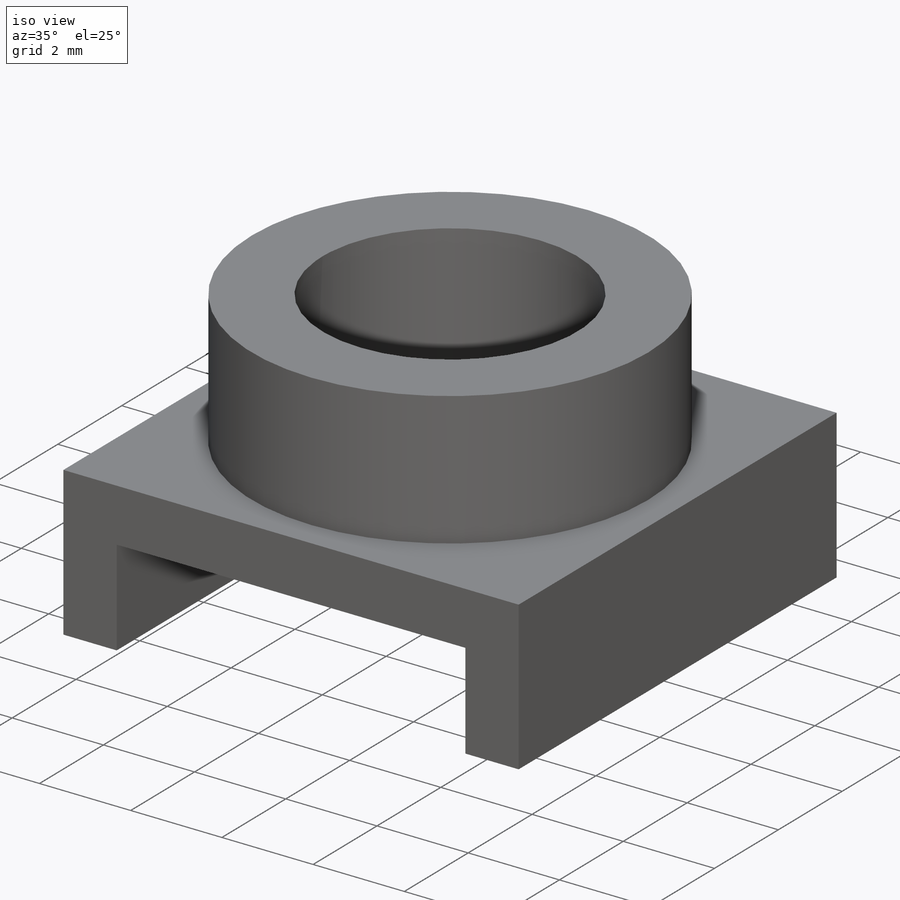
[diagram: iso view]
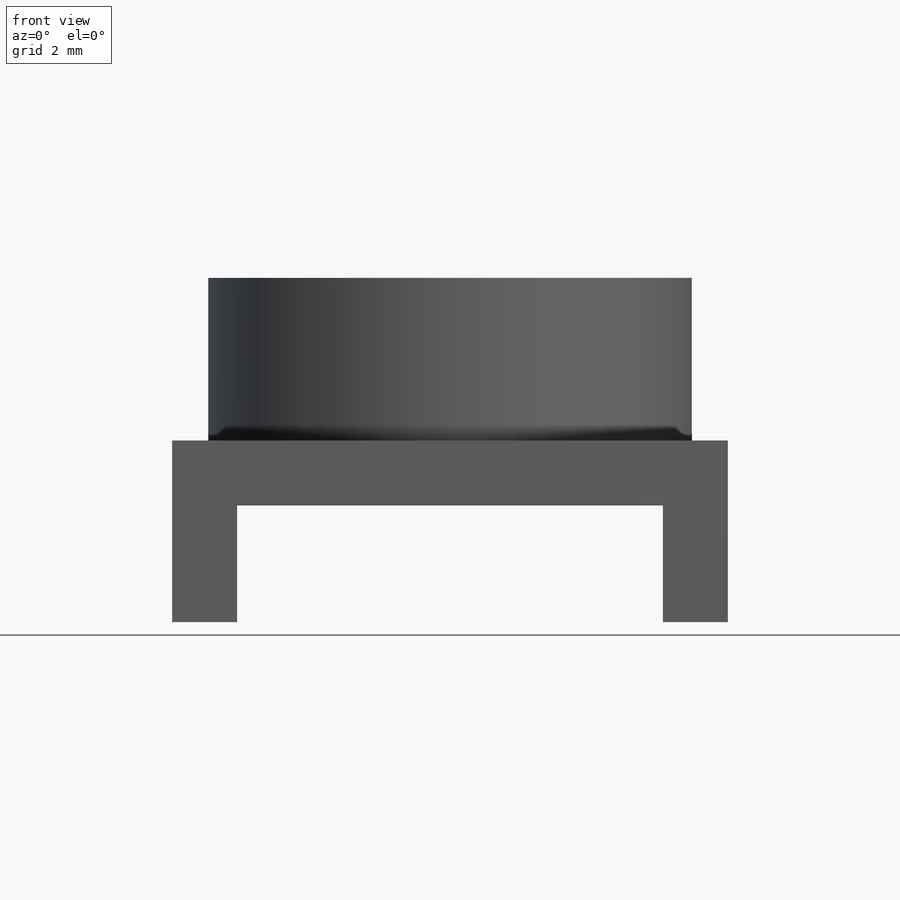
[diagram: front view]
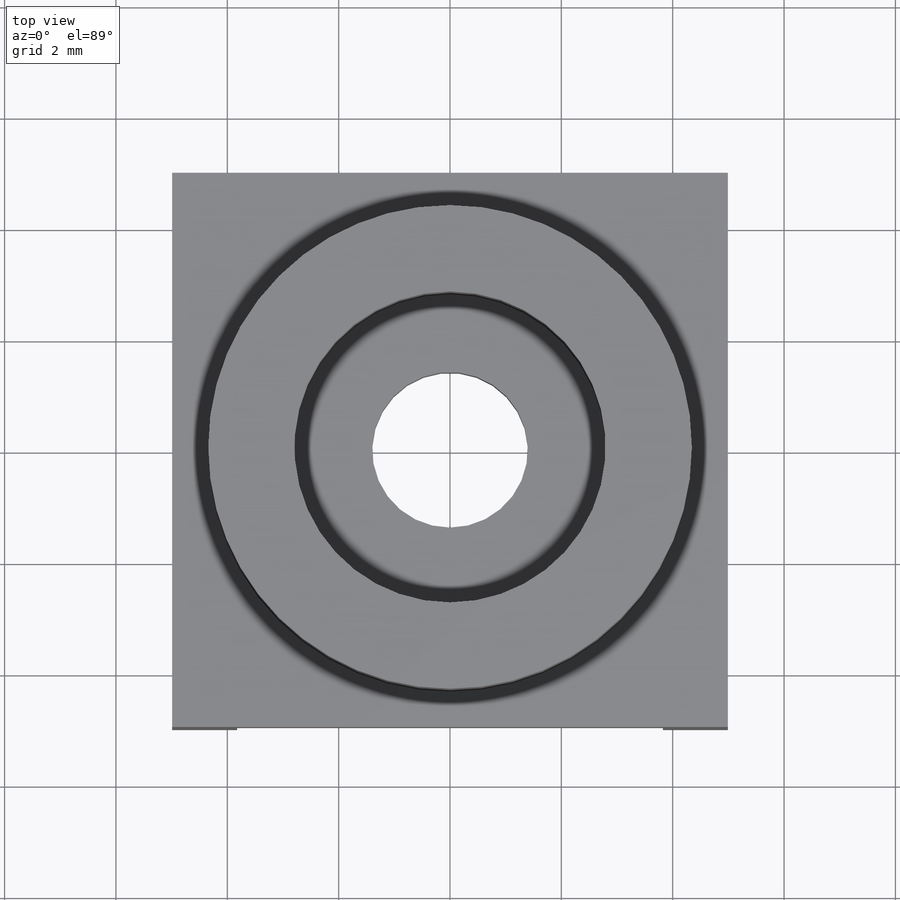
[diagram: top view]
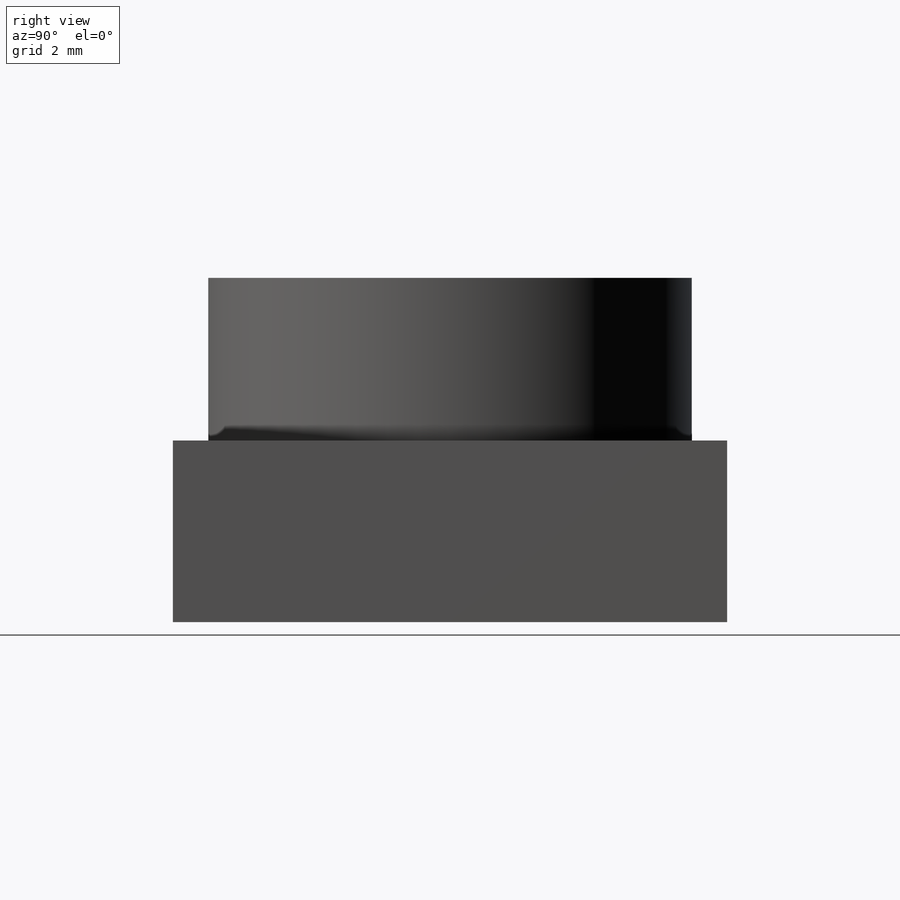
[diagram: right view]
SOLIDWORKS PART (.sldprt)
format: sldprt  version: not decoded by parser v0  size: 155,136 bytes
history: native  units: mm
features: sketch x3, extrude x2, material x1, cut_extrude x1 (+12 scaffold rows collapsed)
feature tree (19):
  scaffold x12  (default folders/planes/origin — collapsed)
  material  "Material <not specified>"
  sketch  "Sketch2"  dims[D1=1.1684mm D2=3.2639mm D3=9.9822mm D4=1.1684mm]
  extrude  "Boss-Extrude1"  Depth=9.9568mm
  sketch  "Sketch3"  dims[D1=8.6868mm D2=5.588mm]
  extrude  "Boss-Extrude2"  Depth=6.1849mm
  sketch  "Sketch4"  dims[D1=2.794mm]
  cut_extrude  "Cut-Extrude1"  [1 undecoded]
decode coverage: 5 of 6 modeling features carry decoded parameters
note: 1 parameter value undecoded
note: suppression state not decoded; provenance and decode notes live in map.json
